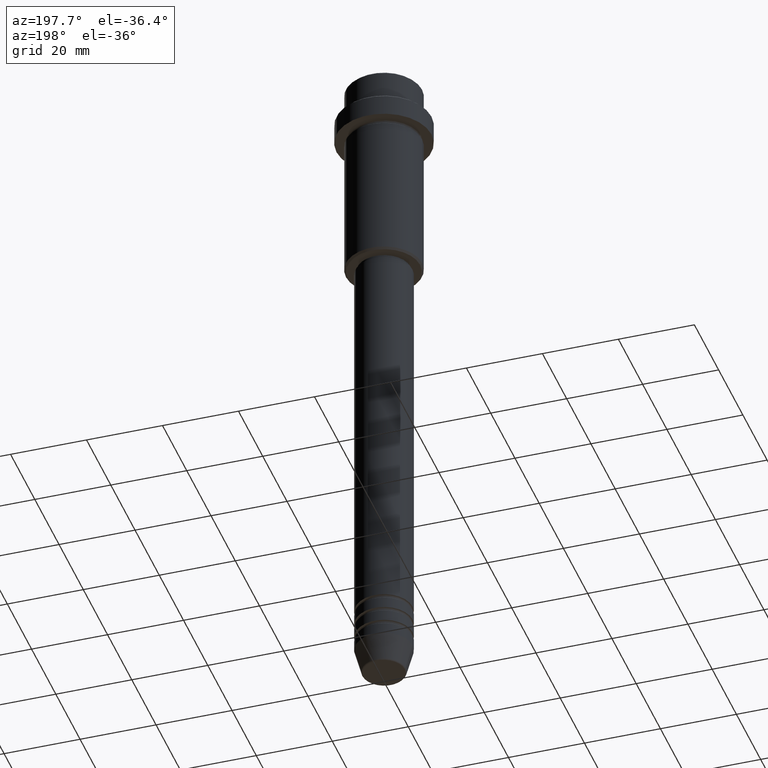
[diagram: clean part render]
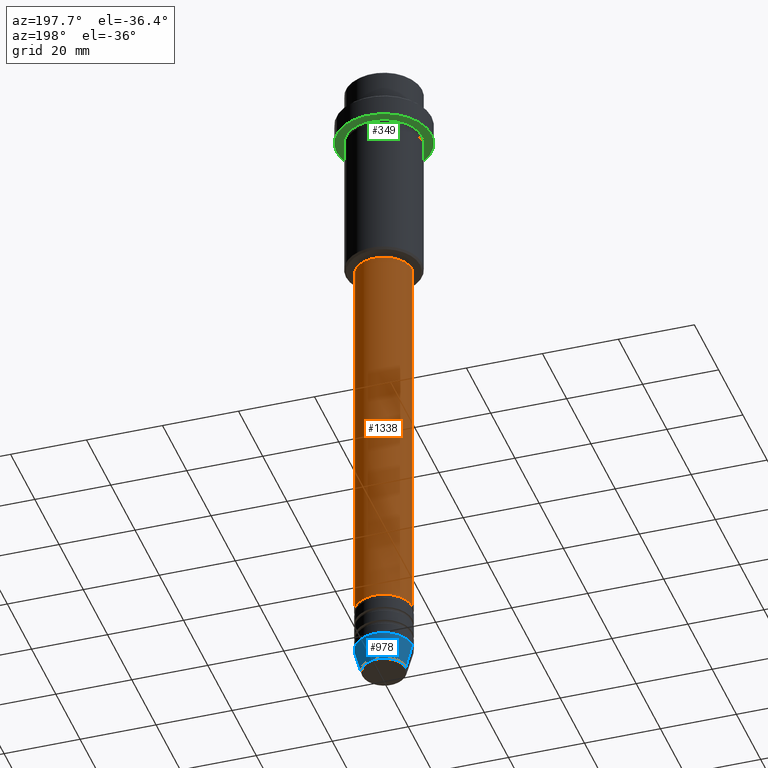
[diagram: same view with three faces highlighted in distinct colors, each labeled with its STEP entity id]
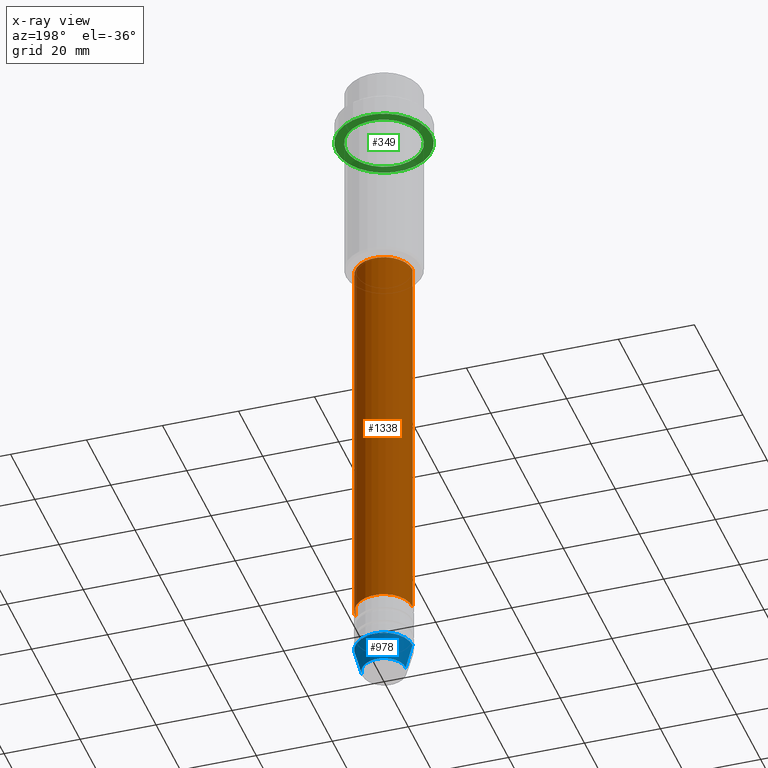
[diagram: x-ray of the same camera — body ghosted, the three highlighted faces saturated]
A machine part, auxiliary view with three faces highlighted in distinct colors.
The next image is the same camera in x-ray (body ghosted, the three faces saturated) — at least one of them is partly hidden behind the body in this view.
Their STEP definitions:

[orange] entity #1338 — the highlighted cylindrical surface (edge-blend (fillet) strip) has radius 7.5 mm, axis along (-0, -0, 1).
#2 = DIRECTION ( 'NONE',  ( 1.000000000000000000, 0.000000000000000000, 0.000000000000000000 ) ) ;
#56 = CARTESIAN_POINT ( 'NONE',  ( 7.500000000000000000, 0.000000000000000000, -160.9999999999998579 ) ) ;
#61 = AXIS2_PLACEMENT_3D ( 'NONE', #615, #496, #1380 ) ;
#110 = LINE ( 'NONE', #981, #1124 ) ;
#149 = AXIS2_PLACEMENT_3D ( 'NONE', #254, #1327, #760 ) ;
#152 = EDGE_CURVE ( 'NONE', #1001, #1364, #1177, .T. ) ;
#154 = EDGE_LOOP ( 'NONE', ( #1326, #618, #415, #792 ) ) ;
#172 = AXIS2_PLACEMENT_3D ( 'NONE', #1136, #652, #2 ) ;
#254 = CARTESIAN_POINT ( 'NONE',  ( 0.000000000000000000, 0.000000000000000000, 0.000000000000000000 ) ) ;
#415 = ORIENTED_EDGE ( 'NONE', *, *, #1066, .F. ) ;
#488 = CARTESIAN_POINT ( 'NONE',  ( -7.500000000000000000, 9.184850993605147944E-16, 0.000000000000000000 ) ) ;
#496 = DIRECTION ( 'NONE',  ( -0.000000000000000000, -0.000000000000000000, 1.000000000000000000 ) ) ;
#505 = CARTESIAN_POINT ( 'NONE',  ( -7.500000000000000000, 9.184850993605147944E-16, -55.99999999999999289 ) ) ;
#550 = EDGE_CURVE ( 'NONE', #1364, #1358, #1157, .T. ) ;
#564 = VERTEX_POINT ( 'NONE', #1145 ) ;
#615 = CARTESIAN_POINT ( 'NONE',  ( 0.000000000000000000, 0.000000000000000000, -160.9999999999998579 ) ) ;
#618 = ORIENTED_EDGE ( 'NONE', *, *, #550, .T. ) ;
#652 = DIRECTION ( 'NONE',  ( -0.000000000000000000, -0.000000000000000000, 1.000000000000000000 ) ) ;
#760 = DIRECTION ( 'NONE',  ( 1.000000000000000000, 0.000000000000000000, 0.000000000000000000 ) ) ;
#792 = ORIENTED_EDGE ( 'NONE', *, *, #1226, .F. ) ;
#877 = FACE_OUTER_BOUND ( 'NONE', #154, .T. ) ;
#881 = VECTOR ( 'NONE', #1397, 1000.000000000000000 ) ;
#945 = CIRCLE ( 'NONE', #172, 7.500000000000000000 ) ;
#981 = CARTESIAN_POINT ( 'NONE',  ( 7.500000000000000000, 0.000000000000000000, 0.000000000000000000 ) ) ;
#1001 = VERTEX_POINT ( 'NONE', #56 ) ;
#1066 = EDGE_CURVE ( 'NONE', #564, #1358, #945, .T. ) ;
#1124 = VECTOR ( 'NONE', #1315, 1000.000000000000000 ) ;
#1136 = CARTESIAN_POINT ( 'NONE',  ( 0.000000000000000000, 0.000000000000000000, -55.99999999999999289 ) ) ;
#1145 = CARTESIAN_POINT ( 'NONE',  ( 7.500000000000000000, 0.000000000000000000, -55.99999999999999289 ) ) ;
#1157 = LINE ( 'NONE', #488, #881 ) ;
#1177 = CIRCLE ( 'NONE', #61, 7.500000000000000000 ) ;
#1226 = EDGE_CURVE ( 'NONE', #1001, #564, #110, .T. ) ;
#1249 = CARTESIAN_POINT ( 'NONE',  ( -7.500000000000000000, 9.184850993605147944E-16, -160.9999999999998579 ) ) ;
#1315 = DIRECTION ( 'NONE',  ( -0.000000000000000000, -0.000000000000000000, 1.000000000000000000 ) ) ;
#1326 = ORIENTED_EDGE ( 'NONE', *, *, #152, .T. ) ;
#1327 = DIRECTION ( 'NONE',  ( -0.000000000000000000, -0.000000000000000000, 1.000000000000000000 ) ) ;
#1338 = ADVANCED_FACE ( 'NONE', ( #877 ), #1349, .T. ) ;
#1349 = CYLINDRICAL_SURFACE ( 'NONE', #149, 7.500000000000000000 ) ;
#1358 = VERTEX_POINT ( 'NONE', #505 ) ;
#1364 = VERTEX_POINT ( 'NONE', #1249 ) ;
#1380 = DIRECTION ( 'NONE',  ( 1.000000000000000000, 0.000000000000000000, 0.000000000000000000 ) ) ;
#1397 = DIRECTION ( 'NONE',  ( -0.000000000000000000, -0.000000000000000000, 1.000000000000000000 ) ) ;

[blue] entity #978 — the highlighted conical surface has half-angle 15 deg.
#27 = ORIENTED_EDGE ( 'NONE', *, *, #882, .T. ) ;
#48 = EDGE_CURVE ( 'NONE', #1256, #392, #303, .T. ) ;
#49 = CARTESIAN_POINT ( 'NONE',  ( 0.000000000000000000, 0.000000000000000000, -173.0000000000000000 ) ) ;
#52 = CARTESIAN_POINT ( 'NONE',  ( -7.500000000000000000, 9.184850993605147944E-16, -173.0000000000000000 ) ) ;
#67 = CARTESIAN_POINT ( 'NONE',  ( 0.000000000000000000, 0.000000000000000000, -173.0000000000000000 ) ) ;
#69 = EDGE_CURVE ( 'NONE', #670, #342, #175, .T. ) ;
#104 = CARTESIAN_POINT ( 'NONE',  ( 5.723655072137191269, 0.000000000000000000, -179.6294095225512422 ) ) ;
#107 = AXIS2_PLACEMENT_3D ( 'NONE', #67, #726, #596 ) ;
#175 = LINE ( 'NONE', #1293, #849 ) ;
#186 = EDGE_LOOP ( 'NONE', ( #27, #504, #769, #545 ) ) ;
#231 = CARTESIAN_POINT ( 'NONE',  ( -5.723655072137191269, 8.097153428560735915E-16, -179.6294095225512422 ) ) ;
#264 = CARTESIAN_POINT ( 'NONE',  ( 7.500000000000000000, 0.000000000000000000, -173.0000000000000000 ) ) ;
#293 = DIRECTION ( 'NONE',  ( 1.000000000000000000, 0.000000000000000000, 0.000000000000000000 ) ) ;
#303 = LINE ( 'NONE', #1148, #772 ) ;
#342 = VERTEX_POINT ( 'NONE', #264 ) ;
#353 = CONICAL_SURFACE ( 'NONE', #1039, 7.500000000000000000, 0.2617993877991500740 ) ;
#390 = DIRECTION ( 'NONE',  ( -0.000000000000000000, -0.000000000000000000, 1.000000000000000000 ) ) ;
#392 = VERTEX_POINT ( 'NONE', #52 ) ;
#504 = ORIENTED_EDGE ( 'NONE', *, *, #48, .T. ) ;
#545 = ORIENTED_EDGE ( 'NONE', *, *, #69, .F. ) ;
#556 = CIRCLE ( 'NONE', #107, 7.500000000000000000 ) ;
#596 = DIRECTION ( 'NONE',  ( 1.000000000000000000, 0.000000000000000000, 0.000000000000000000 ) ) ;
#662 = AXIS2_PLACEMENT_3D ( 'NONE', #1005, #691, #793 ) ;
#670 = VERTEX_POINT ( 'NONE', #104 ) ;
#691 = DIRECTION ( 'NONE',  ( -0.000000000000000000, -0.000000000000000000, 1.000000000000000000 ) ) ;
#726 = DIRECTION ( 'NONE',  ( -0.000000000000000000, -0.000000000000000000, 1.000000000000000000 ) ) ;
#769 = ORIENTED_EDGE ( 'NONE', *, *, #979, .F. ) ;
#772 = VECTOR ( 'NONE', #1285, 1000.000000000000000 ) ;
#793 = DIRECTION ( 'NONE',  ( 1.000000000000000000, 0.000000000000000000, 0.000000000000000000 ) ) ;
#849 = VECTOR ( 'NONE', #943, 1000.000000000000000 ) ;
#882 = EDGE_CURVE ( 'NONE', #670, #1256, #1300, .T. ) ;
#943 = DIRECTION ( 'NONE',  ( 0.2588190451025213501, 0.000000000000000000, 0.9659258262890680902 ) ) ;
#978 = ADVANCED_FACE ( 'NONE', ( #1385 ), #353, .T. ) ;
#979 = EDGE_CURVE ( 'NONE', #342, #392, #556, .T. ) ;
#1005 = CARTESIAN_POINT ( 'NONE',  ( 0.000000000000000000, 0.000000000000000000, -179.6294095225512422 ) ) ;
#1039 = AXIS2_PLACEMENT_3D ( 'NONE', #49, #390, #293 ) ;
#1148 = CARTESIAN_POINT ( 'NONE',  ( -7.500000000000000000, 9.184850993605147944E-16, -173.0000000000000000 ) ) ;
#1256 = VERTEX_POINT ( 'NONE', #231 ) ;
#1285 = DIRECTION ( 'NONE',  ( -0.2588190451025213501, 3.169619151431772337E-17, 0.9659258262890680902 ) ) ;
#1293 = CARTESIAN_POINT ( 'NONE',  ( 7.500000000000000000, 0.000000000000000000, -173.0000000000000000 ) ) ;
#1300 = CIRCLE ( 'NONE', #662, 5.723655072137191269 ) ;
#1385 = FACE_OUTER_BOUND ( 'NONE', #186, .T. ) ;

[green] entity #349 — the highlighted planar face has unit normal (0, 0, -1).
#15 = CARTESIAN_POINT ( 'NONE',  ( 0.000000000000000000, 0.000000000000000000, -15.00000000000000000 ) ) ;
#28 = DIRECTION ( 'NONE',  ( 0.000000000000000000, 0.000000000000000000, -1.000000000000000000 ) ) ;
#38 = ORIENTED_EDGE ( 'NONE', *, *, #1275, .T. ) ;
#41 = DIRECTION ( 'NONE',  ( -1.000000000000000000, 0.000000000000000000, -0.000000000000000000 ) ) ;
#136 = AXIS2_PLACEMENT_3D ( 'NONE', #537, #977, #1107 ) ;
#140 = DIRECTION ( 'NONE',  ( 1.000000000000000000, 0.000000000000000000, 0.000000000000000000 ) ) ;
#170 = VERTEX_POINT ( 'NONE', #541 ) ;
#250 = FACE_BOUND ( 'NONE', #1170, .T. ) ;
#252 = VERTEX_POINT ( 'NONE', #968 ) ;
#282 = CIRCLE ( 'NONE', #480, 12.50000000000000000 ) ;
#308 = DIRECTION ( 'NONE',  ( -0.000000000000000000, -0.000000000000000000, 1.000000000000000000 ) ) ;
#323 = EDGE_CURVE ( 'NONE', #477, #1310, #786, .T. ) ;
#349 = ADVANCED_FACE ( 'NONE', ( #250, #1020 ), #1125, .T. ) ;
#461 = DIRECTION ( 'NONE',  ( -0.000000000000000000, -0.000000000000000000, 1.000000000000000000 ) ) ;
#477 = VERTEX_POINT ( 'NONE', #1139 ) ;
#478 = AXIS2_PLACEMENT_3D ( 'NONE', #15, #308, #645 ) ;
#480 = AXIS2_PLACEMENT_3D ( 'NONE', #892, #1219, #140 ) ;
#537 = CARTESIAN_POINT ( 'NONE',  ( 0.000000000000000000, 0.000000000000000000, -15.00000000000000000 ) ) ;
#541 = CARTESIAN_POINT ( 'NONE',  ( 12.50000000000000000, 0.000000000000000000, -15.00000000000000000 ) ) ;
#645 = DIRECTION ( 'NONE',  ( 1.000000000000000000, 0.000000000000000000, 0.000000000000000000 ) ) ;
#690 = ORIENTED_EDGE ( 'NONE', *, *, #748, .F. ) ;
#748 = EDGE_CURVE ( 'NONE', #252, #170, #969, .T. ) ;
#786 = CIRCLE ( 'NONE', #136, 9.999999999999992895 ) ;
#815 = EDGE_CURVE ( 'NONE', #170, #252, #282, .T. ) ;
#824 = CIRCLE ( 'NONE', #1273, 9.999999999999992895 ) ;
#829 = ORIENTED_EDGE ( 'NONE', *, *, #815, .F. ) ;
#890 = CARTESIAN_POINT ( 'NONE',  ( -9.999999999999992895, 0.000000000000000000, -15.00000000000000000 ) ) ;
#892 = CARTESIAN_POINT ( 'NONE',  ( 0.000000000000000000, 0.000000000000000000, -15.00000000000000000 ) ) ;
#899 = DIRECTION ( 'NONE',  ( -1.000000000000000000, 0.000000000000000000, 0.000000000000000000 ) ) ;
#904 = CARTESIAN_POINT ( 'NONE',  ( 0.000000000000000000, 12.50000000000000000, -15.00000000000000000 ) ) ;
#968 = CARTESIAN_POINT ( 'NONE',  ( -12.50000000000000000, 1.530808498934191521E-15, -15.00000000000000000 ) ) ;
#969 = CIRCLE ( 'NONE', #478, 12.50000000000000000 ) ;
#977 = DIRECTION ( 'NONE',  ( -0.000000000000000000, -0.000000000000000000, 1.000000000000000000 ) ) ;
#1002 = CARTESIAN_POINT ( 'NONE',  ( 0.000000000000000000, 0.000000000000000000, -15.00000000000000000 ) ) ;
#1020 = FACE_OUTER_BOUND ( 'NONE', #1247, .T. ) ;
#1107 = DIRECTION ( 'NONE',  ( -1.000000000000000000, 0.000000000000000000, 0.000000000000000000 ) ) ;
#1125 = PLANE ( 'NONE',  #1209 ) ;
#1139 = CARTESIAN_POINT ( 'NONE',  ( 9.999999999999992895, 1.224646799147352468E-15, -15.00000000000000000 ) ) ;
#1170 = EDGE_LOOP ( 'NONE', ( #38, #1232 ) ) ;
#1209 = AXIS2_PLACEMENT_3D ( 'NONE', #904, #28, #41 ) ;
#1219 = DIRECTION ( 'NONE',  ( -0.000000000000000000, -0.000000000000000000, 1.000000000000000000 ) ) ;
#1232 = ORIENTED_EDGE ( 'NONE', *, *, #323, .T. ) ;
#1247 = EDGE_LOOP ( 'NONE', ( #829, #690 ) ) ;
#1273 = AXIS2_PLACEMENT_3D ( 'NONE', #1002, #461, #899 ) ;
#1275 = EDGE_CURVE ( 'NONE', #1310, #477, #824, .T. ) ;
#1310 = VERTEX_POINT ( 'NONE', #890 ) ;